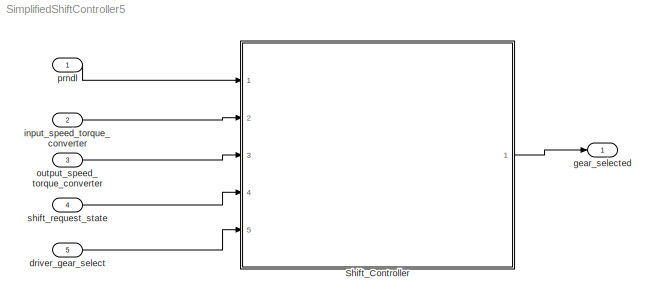
MODEL SimplifiedShiftController5
KIND model
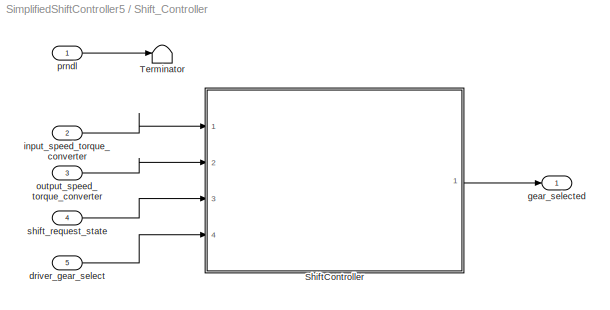
BLOCK [SubSystem] Shift_Controller
  FunctionWithSeparateData = off
  MaskHideContents = off
  MinAlgLoopOccurrences = off
  Opaque = off
  Ports = [5, 1]
  PropExecContextOutsideSubsystem = off
  RTWSystemCode = Auto
  RequestExecContextInheritance = off
  SID = 1
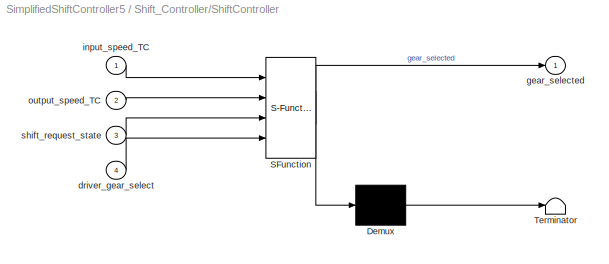
BLOCK [SubSystem] Shift_Controller/ShiftController
  ErrorFcn = Stateflow.Translate.translate
  FunctionWithSeparateData = off
  MaskHideContents = off
  MinAlgLoopOccurrences = off
  Opaque = off
  PermitHierarchicalResolution = ExplicitOnly
  Ports = [4, 1]
  PropExecContextOutsideSubsystem = off
  RTWSystemCode = Auto
  RequestExecContextInheritance = off
  SFBlockType = Chart
  SID = 20
  TreatAsAtomicUnit = on
BLOCK [Demux] Shift_Controller/ShiftController/ Demux 
  Outputs = 1
  Ports = [1, 1]
  SID = 20::55
BLOCK [S-Function] Shift_Controller/ShiftController/ SFunction 
  EnableBusSupport = off
  FunctionName = sf_sfun
  PortCounts = [4 2]
  Ports = [4, 2]
  SID = 20::54
  Tag = Stateflow S-Function SimplifiedShiftController5 1
BLOCK [Terminator] Shift_Controller/ShiftController/ Terminator 
  SID = 20::56
BLOCK [Inport] Shift_Controller/ShiftController/driver_gear_select
  IconDisplay = Port number
  Port = 4
  SID = 20::52
BLOCK [Outport] Shift_Controller/ShiftController/gear_selected
  IconDisplay = Port number
  SID = 20::53
BLOCK [Inport] Shift_Controller/ShiftController/input_speed_TC
  IconDisplay = Port number
  SID = 20::50
BLOCK [Inport] Shift_Controller/ShiftController/output_speed_TC
  IconDisplay = Port number
  Port = 2
  SID = 20::51
BLOCK [Inport] Shift_Controller/ShiftController/shift_request_state
  IconDisplay = Port number
  Port = 3
  SID = 20::45
BLOCK [Terminator] Shift_Controller/Terminator
  SID = 48
BLOCK [Inport] Shift_Controller/driver_gear_select
  IconDisplay = Port number
  Port = 5
  SID = 47
BLOCK [Outport] Shift_Controller/gear_selected
  IconDisplay = Port number
  SID = 29
BLOCK [Inport] Shift_Controller/input_speed_torque_converter
  IconDisplay = Port number
  Port = 2
  SID = 44
BLOCK [Inport] Shift_Controller/output_speed_torque_converter
  IconDisplay = Port number
  Port = 3
  SID = 45
BLOCK [Inport] Shift_Controller/prndl
  IconDisplay = Port number
  SID = 43
BLOCK [Inport] Shift_Controller/shift_request_state
  IconDisplay = Port number
  Port = 4
  SID = 46
BLOCK [Inport] driver_gear_select
  IconDisplay = Port number
  Port = 5
  SID = 37
BLOCK [Outport] gear_selected
  IconDisplay = Port number
  SID = 31
BLOCK [Inport] input_speed_torque_converter
  IconDisplay = Port number
  Port = 2
  SID = 32
BLOCK [Inport] output_speed_torque_converter
  IconDisplay = Port number
  Port = 3
  SID = 33
BLOCK [Inport] prndl
  IconDisplay = Port number
  SID = 30
BLOCK [Inport] shift_request_state
  IconDisplay = Port number
  Port = 4
  SID = 34
LINE Shift_Controller/ShiftController/ Demux :1 -> Shift_Controller/ShiftController/ Terminator :1
LINE Shift_Controller/ShiftController/ SFunction :1 -> Shift_Controller/ShiftController/ Demux :1
LINE Shift_Controller/ShiftController/ SFunction :2 -> Shift_Controller/ShiftController/gear_selected:1
LINE Shift_Controller/ShiftController/driver_gear_select:1 -> Shift_Controller/ShiftController/ SFunction :4
LINE Shift_Controller/ShiftController/input_speed_TC:1 -> Shift_Controller/ShiftController/ SFunction :1
LINE Shift_Controller/ShiftController/output_speed_TC:1 -> Shift_Controller/ShiftController/ SFunction :2
LINE Shift_Controller/ShiftController/shift_request_state:1 -> Shift_Controller/ShiftController/ SFunction :3
LINE Shift_Controller/ShiftController:1 -> Shift_Controller/gear_selected:1
LINE Shift_Controller/driver_gear_select:1 -> Shift_Controller/ShiftController:4
LINE Shift_Controller/input_speed_torque_converter:1 -> Shift_Controller/ShiftController:1
LINE Shift_Controller/output_speed_torque_converter:1 -> Shift_Controller/ShiftController:2
LINE Shift_Controller/prndl:1 -> Shift_Controller/Terminator:1
LINE Shift_Controller/shift_request_state:1 -> Shift_Controller/ShiftController:3
LINE Shift_Controller:1 -> gear_selected:1
LINE driver_gear_select:1 -> Shift_Controller:5
LINE input_speed_torque_converter:1 -> Shift_Controller:2
LINE output_speed_torque_converter:1 -> Shift_Controller:3
LINE prndl:1 -> Shift_Controller:1
LINE shift_request_state:1 -> Shift_Controller:4
CHART Shift_Controller/ShiftController states=11 transitions=16
  STATE_LABEL 'gear1\\nen:gear_selected=1;'
  STATE_LABEL 'lockoutU2\\nen: current_time = 0;\\ndu: current_time += SamplePeriod;'
  STATE_LABEL 'gear2\\nen: gear_selected = 2;'
  STATE_LABEL 'lockoutD1\\nen: current_time = 0;\\ndu: current_time += SamplePeriod;'
  STATE_LABEL 'lockoutD2\\nen: current_time = 0;\\ndu: current_time += SamplePeriod;'
  STATE_LABEL 'lockoutD3\\nen: current_time = 0;\\ndu: current_time += SamplePeriod;'
  STATE_LABEL 'lockoutU3\\nen: current_time = 0;\\ndu: current_time += SamplePeriod;'
  STATE_LABEL 'lockoutU4\\nen: current_time = 0;\\ndu:current_time += SamplePeriod; '
  STATE_LABEL 'gear3\\nen: gear_selected = 3;'
  STATE_LABEL 'gear4\\nen: gear_selected = 4;'
  STATE_LABEL 'gear0\\nen:gear_selected=0;'
